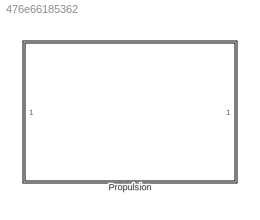
MODEL slx_476e66185362
KIND library
CONFIG AbsTol = auto
CONFIG EnableMultiTasking = off
CONFIG FixedStep = auto
CONFIG MaxStep = auto
CONFIG MinStep = auto
CONFIG RelTol = 1e-3
CONFIG SampleTimeConstraint = Unconstrained
CONFIG SolverName = VariableStepAuto
CONFIG StartTime = 0.0
CONFIG StopTime = 10.0
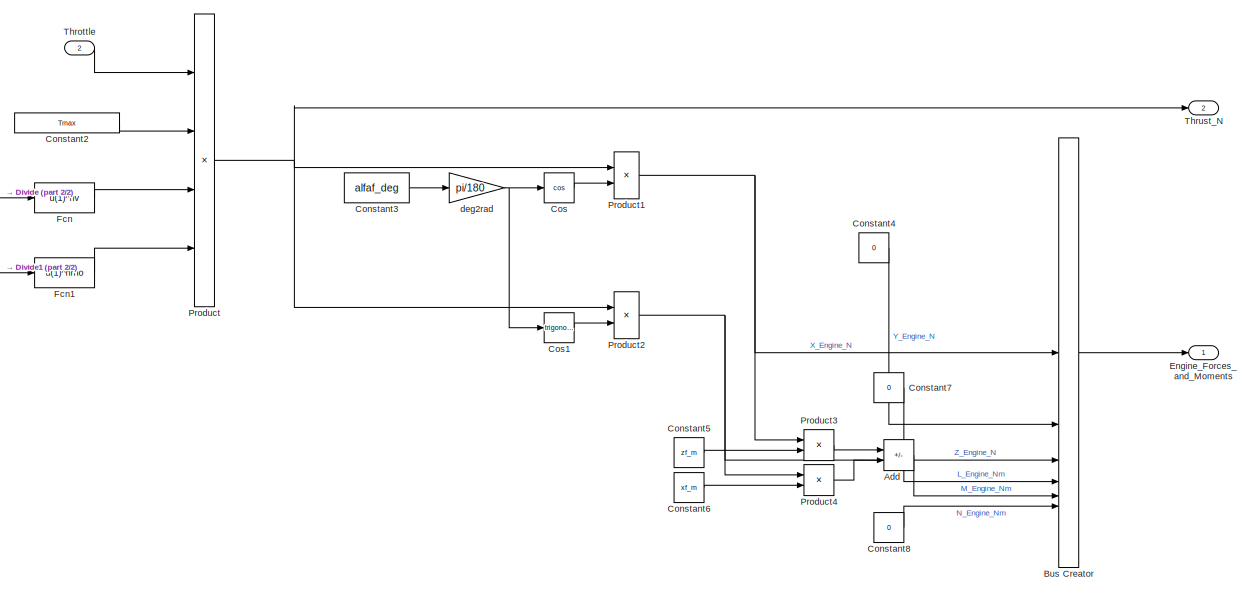
[diagram: Propulsion - part 1/2, most of the canvas]
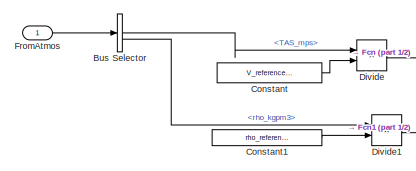
[diagram: Propulsion - part 2/2, middle left region]
BLOCK [SubSystem] Propulsion
BLOCK [Sum] Propulsion/Add
  IconShape = rectangular
  Inputs = +-
BLOCK [BusCreator] Propulsion/Bus Creator
  DisplayOption = bar
  InheritFromInputs = on
  Inputs = 6
BLOCK [BusSelector] Propulsion/Bus Selector
  OutputSignals = TAS_mps,rho_kgpm3
BLOCK [Constant] Propulsion/Constant
  Value = V_reference_mps
BLOCK [Constant] Propulsion/Constant1
  Value = rho_reference_kgpm3
BLOCK [Constant] Propulsion/Constant2
  Value = Tmax
BLOCK [Constant] Propulsion/Constant3
  Value = alfaf_deg
BLOCK [Constant] Propulsion/Constant4
  Value = 0
BLOCK [Constant] Propulsion/Constant5
  Value = zf_m
BLOCK [Constant] Propulsion/Constant6
  Value = xf_m
BLOCK [Constant] Propulsion/Constant7
  Value = 0
BLOCK [Constant] Propulsion/Constant8
  Value = 0
BLOCK [Trigonometry] Propulsion/Cos
  Operator = cos
BLOCK [Trigonometry] Propulsion/Cos1
BLOCK [Product] Propulsion/Divide
  Inputs = */
BLOCK [Product] Propulsion/Divide1
  Inputs = */
BLOCK [Outport] Propulsion/Engine_Forces_and_Moments
BLOCK [Fcn] Propulsion/Fcn
  Expr = u(1)^nv
BLOCK [Fcn] Propulsion/Fcn1
  Expr = u(1)^nrho
BLOCK [Inport] Propulsion/FromAtmos
BLOCK [Product] Propulsion/Product
  Inputs = 4
BLOCK [Product] Propulsion/Product1
BLOCK [Product] Propulsion/Product2
BLOCK [Product] Propulsion/Product3
BLOCK [Product] Propulsion/Product4
BLOCK [Inport] Propulsion/Throttle
  Port = 2
BLOCK [Outport] Propulsion/Thrust_N
  Port = 2
BLOCK [Gain] Propulsion/deg2rad
  Gain = pi/180
LINE Propulsion/Add:1 -> Propulsion/Bus Creator:5
LINE Propulsion/Bus Creator:1 -> Propulsion/Engine_Forces_and_Moments:1
LINE Propulsion/Bus Selector:1 -> Propulsion/Divide:1
LINE Propulsion/Bus Selector:2 -> Propulsion/Divide1:1
LINE Propulsion/Constant1:1 -> Propulsion/Divide1:2
LINE Propulsion/Constant2:1 -> Propulsion/Product:2
LINE Propulsion/Constant3:1 -> Propulsion/deg2rad:1
LINE Propulsion/Constant4:1 -> Propulsion/Bus Creator:2
LINE Propulsion/Constant5:1 -> Propulsion/Product3:2
LINE Propulsion/Constant6:1 -> Propulsion/Product4:2
LINE Propulsion/Constant7:1 -> Propulsion/Bus Creator:4
LINE Propulsion/Constant8:1 -> Propulsion/Bus Creator:6
LINE Propulsion/Constant:1 -> Propulsion/Divide:2
LINE Propulsion/Cos1:1 -> Propulsion/Product2:2
LINE Propulsion/Cos:1 -> Propulsion/Product1:2
LINE Propulsion/Divide1:1 -> Propulsion/Fcn1:1
LINE Propulsion/Divide:1 -> Propulsion/Fcn:1
LINE Propulsion/Fcn1:1 -> Propulsion/Product:4
LINE Propulsion/Fcn:1 -> Propulsion/Product:3
LINE Propulsion/FromAtmos:1 -> Propulsion/Bus Selector:1
NET Propulsion/Product1:1 -> Propulsion/Bus Creator:1, Propulsion/Product3:1
NET Propulsion/Product2:1 -> Propulsion/Bus Creator:3, Propulsion/Product4:1
LINE Propulsion/Product3:1 -> Propulsion/Add:1
LINE Propulsion/Product4:1 -> Propulsion/Add:2
NET Propulsion/Product:1 -> Propulsion/Product1:1, Propulsion/Product2:1, Propulsion/Thrust_N:1
LINE Propulsion/Throttle:1 -> Propulsion/Product:1
NET Propulsion/deg2rad:1 -> Propulsion/Cos1:1, Propulsion/Cos:1
note: NET lines group one-source signal fan-out (src -> all destinations, sorted); 1:1 wires keep LINE
